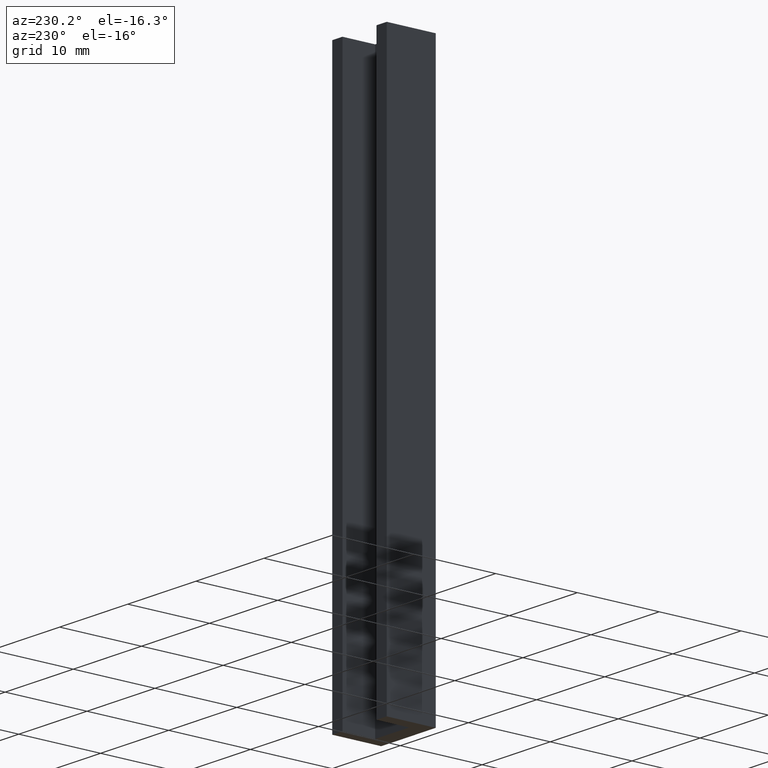
[diagram: clean part render]
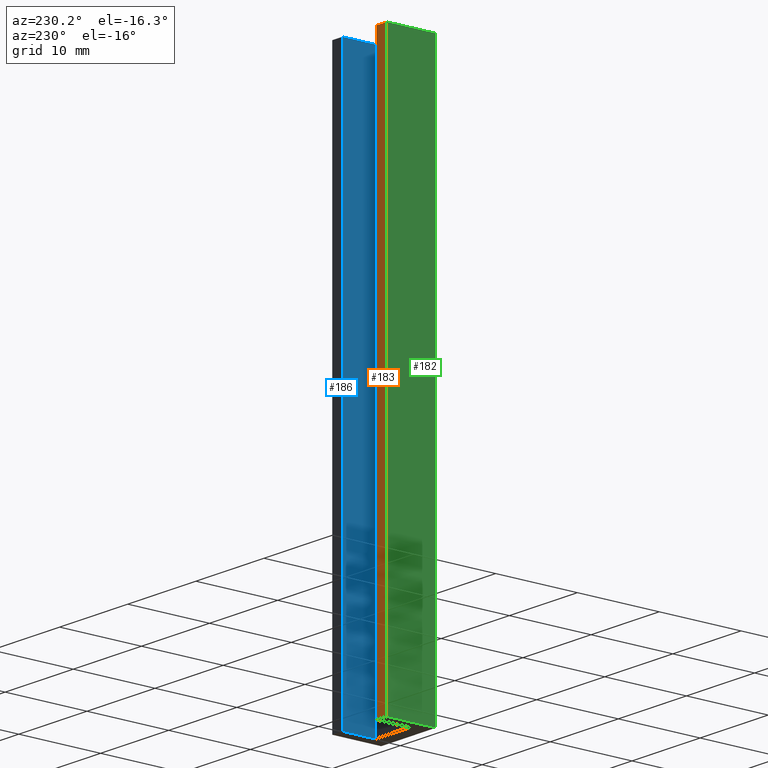
[diagram: same view with three faces highlighted in distinct colors, each labeled with its STEP entity id]
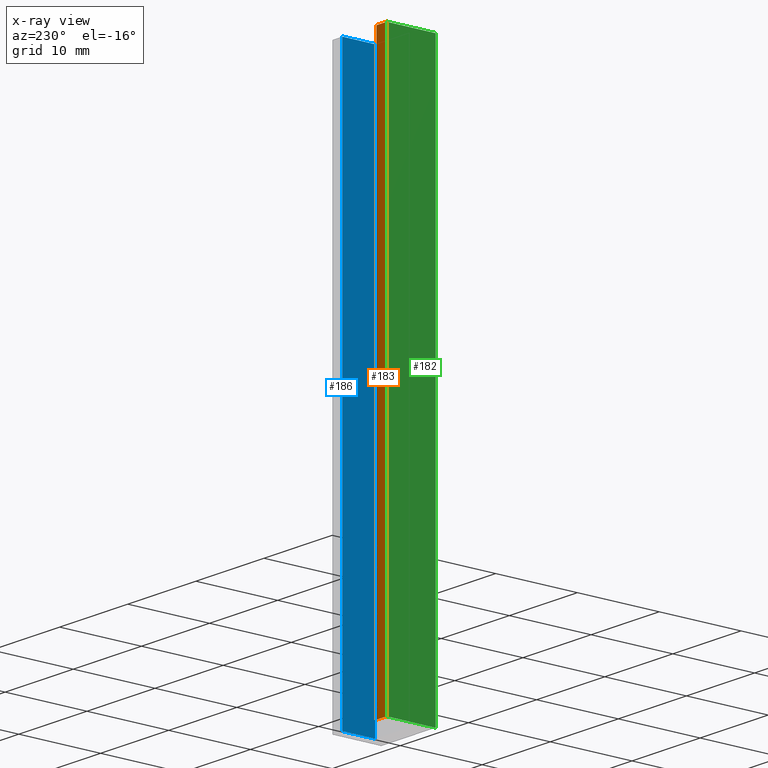
[diagram: x-ray of the same camera — body ghosted, the three highlighted faces saturated]
A machine part, auxiliary view with three faces highlighted in distinct colors.
The next image is the same camera in x-ray (body ghosted, the three faces saturated) — at least one of them is partly hidden behind the body in this view.
Their STEP definitions:

[orange] entity #183 — the highlighted planar face has unit normal (0, 1, 0).
#17=FACE_OUTER_BOUND('',#27,.T.);
#27=EDGE_LOOP('',(#135,#136,#137,#138));
#38=LINE('',#280,#62);
#44=LINE('',#292,#68);
#46=LINE('',#296,#70);
#47=LINE('',#297,#71);
#62=VECTOR('',#231,10.);
#68=VECTOR('',#239,10.);
#70=VECTOR('',#243,10.);
#71=VECTOR('',#244,10.);
#86=VERTEX_POINT('',#277);
#87=VERTEX_POINT('',#279);
#92=VERTEX_POINT('',#290);
#93=VERTEX_POINT('',#295);
#102=EDGE_CURVE('',#87,#86,#38,.T.);
#108=EDGE_CURVE('',#86,#92,#44,.T.);
#110=EDGE_CURVE('',#92,#93,#46,.T.);
#111=EDGE_CURVE('',#87,#93,#47,.T.);
#135=ORIENTED_EDGE('',*,*,#110,.T.);
#136=ORIENTED_EDGE('',*,*,#111,.F.);
#137=ORIENTED_EDGE('',*,*,#102,.T.);
#138=ORIENTED_EDGE('',*,*,#108,.T.);
#173=PLANE('',#216);
#183=ADVANCED_FACE('',(#17),#173,.T.);
#216=AXIS2_PLACEMENT_3D('',#294,#241,#242);
#231=DIRECTION('',(-1.,0.,0.));
#239=DIRECTION('',(0.,0.,1.));
#241=DIRECTION('center_axis',(0.,1.,0.));
#242=DIRECTION('ref_axis',(0.,0.,1.));
#243=DIRECTION('',(1.,0.,0.));
#244=DIRECTION('',(0.,0.,1.));
#277=CARTESIAN_POINT('',(-4.,5.,-34.));
#279=CARTESIAN_POINT('',(-2.5,5.,-34.));
#280=CARTESIAN_POINT('',(-2.5,5.,-34.));
#290=CARTESIAN_POINT('',(-4.,5.,34.));
#292=CARTESIAN_POINT('',(-4.,5.,0.));
#294=CARTESIAN_POINT('Origin',(-4.,5.,0.));
#295=CARTESIAN_POINT('',(-2.5,5.,34.));
#296=CARTESIAN_POINT('',(-2.5,5.,34.));
#297=CARTESIAN_POINT('',(-2.5,5.,0.));

[blue] entity #186 — the highlighted planar face has unit normal (-1, 0, 0).
#20=FACE_OUTER_BOUND('',#30,.T.);
#30=EDGE_LOOP('',(#147,#148,#149,#150));
#41=LINE('',#286,#65);
#51=LINE('',#305,#75);
#52=LINE('',#308,#76);
#53=LINE('',#309,#77);
#65=VECTOR('',#234,10.);
#75=VECTOR('',#252,10.);
#76=VECTOR('',#255,10.);
#77=VECTOR('',#256,10.);
#89=VERTEX_POINT('',#283);
#90=VERTEX_POINT('',#285);
#95=VERTEX_POINT('',#303);
#96=VERTEX_POINT('',#307);
#105=EDGE_CURVE('',#90,#89,#41,.T.);
#115=EDGE_CURVE('',#89,#95,#51,.T.);
#116=EDGE_CURVE('',#95,#96,#52,.T.);
#117=EDGE_CURVE('',#90,#96,#53,.T.);
#147=ORIENTED_EDGE('',*,*,#116,.T.);
#148=ORIENTED_EDGE('',*,*,#117,.F.);
#149=ORIENTED_EDGE('',*,*,#105,.T.);
#150=ORIENTED_EDGE('',*,*,#115,.T.);
#176=PLANE('',#219);
#186=ADVANCED_FACE('',(#20),#176,.T.);
#219=AXIS2_PLACEMENT_3D('',#306,#253,#254);
#234=DIRECTION('',(0.,-1.,0.));
#252=DIRECTION('',(0.,0.,1.));
#253=DIRECTION('center_axis',(-1.,0.,0.));
#254=DIRECTION('ref_axis',(0.,0.,1.));
#255=DIRECTION('',(0.,1.,0.));
#256=DIRECTION('',(0.,0.,1.));
#283=CARTESIAN_POINT('',(2.5,1.,-34.));
#285=CARTESIAN_POINT('',(2.5,5.,-34.));
#286=CARTESIAN_POINT('',(2.5,5.,-34.));
#303=CARTESIAN_POINT('',(2.5,1.,34.));
#305=CARTESIAN_POINT('',(2.5,1.,0.));
#306=CARTESIAN_POINT('Origin',(2.5,1.,0.));
#307=CARTESIAN_POINT('',(2.5,5.,34.));
#308=CARTESIAN_POINT('',(2.5,5.,34.));
#309=CARTESIAN_POINT('',(2.5,5.,0.));

[green] entity #182 — the highlighted planar face has unit normal (-1, 0, 0).
#16=FACE_OUTER_BOUND('',#26,.T.);
#26=EDGE_LOOP('',(#131,#132,#133,#134));
#37=LINE('',#278,#61);
#43=LINE('',#291,#67);
#44=LINE('',#292,#68);
#45=LINE('',#293,#69);
#61=VECTOR('',#230,10.);
#67=VECTOR('',#238,10.);
#68=VECTOR('',#239,10.);
#69=VECTOR('',#240,10.);
#85=VERTEX_POINT('',#275);
#86=VERTEX_POINT('',#277);
#91=VERTEX_POINT('',#289);
#92=VERTEX_POINT('',#290);
#101=EDGE_CURVE('',#86,#85,#37,.T.);
#107=EDGE_CURVE('',#91,#92,#43,.T.);
#108=EDGE_CURVE('',#86,#92,#44,.T.);
#109=EDGE_CURVE('',#91,#85,#45,.T.);
#131=ORIENTED_EDGE('',*,*,#107,.T.);
#132=ORIENTED_EDGE('',*,*,#108,.F.);
#133=ORIENTED_EDGE('',*,*,#101,.T.);
#134=ORIENTED_EDGE('',*,*,#109,.F.);
#172=PLANE('',#215);
#182=ADVANCED_FACE('',(#16),#172,.T.);
#215=AXIS2_PLACEMENT_3D('',#288,#236,#237);
#230=DIRECTION('',(0.,-1.,0.));
#236=DIRECTION('center_axis',(-1.,0.,0.));
#237=DIRECTION('ref_axis',(0.,0.,1.));
#238=DIRECTION('',(0.,1.,0.));
#239=DIRECTION('',(0.,0.,1.));
#240=DIRECTION('',(0.,0.,-1.));
#275=CARTESIAN_POINT('',(-4.,-1.,-34.));
#277=CARTESIAN_POINT('',(-4.,5.,-34.));
#278=CARTESIAN_POINT('',(-4.,5.,-34.));
#288=CARTESIAN_POINT('Origin',(-4.,-1.,0.));
#289=CARTESIAN_POINT('',(-4.,-1.,34.));
#290=CARTESIAN_POINT('',(-4.,5.,34.));
#291=CARTESIAN_POINT('',(-4.,5.,34.));
#292=CARTESIAN_POINT('',(-4.,5.,0.));
#293=CARTESIAN_POINT('',(-4.,-1.,0.));